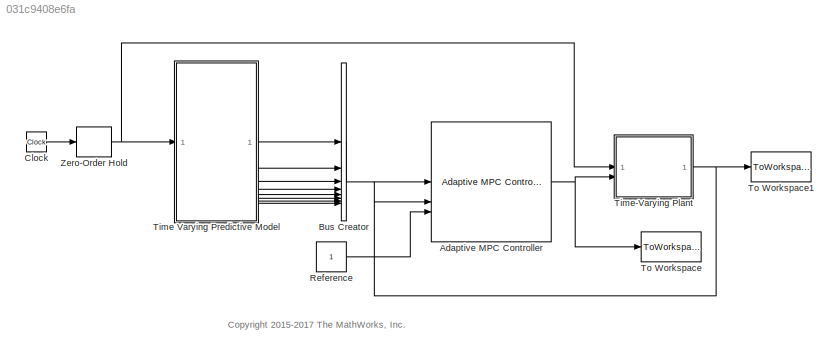
MODEL slx_031c9408e6fa
KIND model
CONFIG AbsTol = auto
CONFIG EnableMultiTasking = on
CONFIG FixedStep = Ts
CONFIG MaxStep = auto
CONFIG MinStep = auto
CONFIG RelTol = 1e-3
CONFIG SampleTimeConstraint = Unconstrained
CONFIG SolverName = FixedStepDiscrete
CONFIG StartTime = 0.0
CONFIG StopTime = 5
BLOCK [Reference] Adaptive MPC Controller  REF=mpclib/Adaptive MPC Controller  (lib defined in mdl_ae329e0e0455)
  SCDEnableBlockLinearizationSpecification = on
  SourceBlock = mpclib/Adaptive MPC Controller
  SourceType = Adaptive MPC
BLOCK [BusCreator] Bus Creator
  DisplayOption = bar
  InheritFromInputs = on
  Inputs = 8
BLOCK [Clock] Clock
BLOCK [Constant] Reference
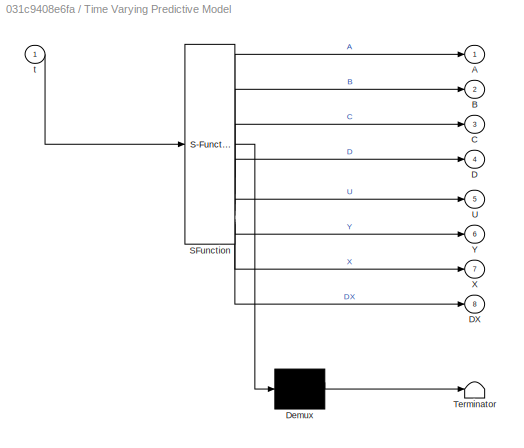
BLOCK [SubSystem] Time Varying Predictive Model
  ErrorFcn = Stateflow.Translate.translate
  PermitHierarchicalResolution = ExplicitOnly
  SFBlockType = MATLAB Function
  TreatAsAtomicUnit = on
BLOCK [Demux] Time Varying Predictive Model/ Demux 
  Outputs = 1
BLOCK [S-Function] Time Varying Predictive Model/ SFunction 
  EnableBusSupport = off
  FunctionName = sf_sfun
  Parameters = Ts
  PortCounts = [1 9]
  SFcnIsStateOwnerBlock = off
  SFunctionDeploymentMode = off
  Tag = Stateflow S-Function 1
BLOCK [Terminator] Time Varying Predictive Model/ Terminator 
BLOCK [Outport] Time Varying Predictive Model/A
BLOCK [Outport] Time Varying Predictive Model/B
  Port = 2
BLOCK [Outport] Time Varying Predictive Model/C
  Port = 3
BLOCK [Outport] Time Varying Predictive Model/D
  Port = 4
BLOCK [Outport] Time Varying Predictive Model/DX
  Port = 8
BLOCK [Outport] Time Varying Predictive Model/U
  Port = 5
BLOCK [Outport] Time Varying Predictive Model/X
  Port = 7
BLOCK [Outport] Time Varying Predictive Model/Y
  Port = 6
BLOCK [Inport] Time Varying Predictive Model/t
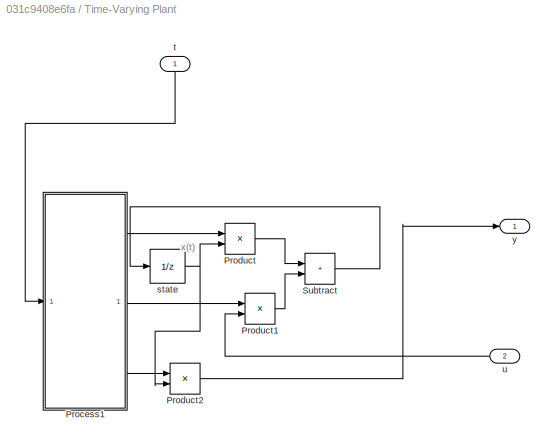
BLOCK [SubSystem] Time-Varying Plant
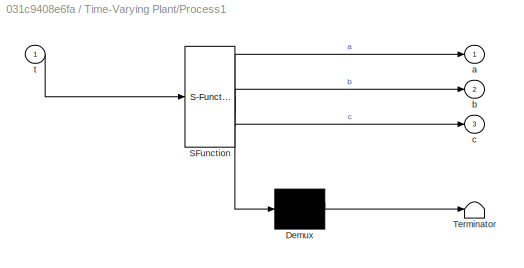
BLOCK [SubSystem] Time-Varying Plant/Process1
  ErrorFcn = Stateflow.Translate.translate
  PermitHierarchicalResolution = ExplicitOnly
  SFBlockType = MATLAB Function
  SystemSampleTime = Ts
  TreatAsAtomicUnit = on
BLOCK [Demux] Time-Varying Plant/Process1/ Demux 
  Outputs = 1
BLOCK [S-Function] Time-Varying Plant/Process1/ SFunction 
  EnableBusSupport = off
  FunctionName = sf_sfun
  Parameters = Ts
  PortCounts = [1 4]
  SFcnIsStateOwnerBlock = off
  SFunctionDeploymentMode = off
  Tag = Stateflow S-Function 2
BLOCK [Terminator] Time-Varying Plant/Process1/ Terminator 
BLOCK [Outport] Time-Varying Plant/Process1/a
BLOCK [Outport] Time-Varying Plant/Process1/b
  Port = 2
BLOCK [Outport] Time-Varying Plant/Process1/c
  Port = 3
BLOCK [Inport] Time-Varying Plant/Process1/t
BLOCK [Product] Time-Varying Plant/Product
  Multiplication = Matrix(*)
BLOCK [Product] Time-Varying Plant/Product1
  Multiplication = Matrix(*)
BLOCK [Product] Time-Varying Plant/Product2
  Multiplication = Matrix(*)
BLOCK [Sum] Time-Varying Plant/Subtract
  IconShape = rectangular
BLOCK [UnitDelay] Time-Varying Plant/state
  HasFrameUpgradeWarning = on
  InitialCondition = x0
  SampleTime = Ts
BLOCK [Inport] Time-Varying Plant/t
  NameLocation = right
BLOCK [Inport] Time-Varying Plant/u
  Port = 2
BLOCK [Outport] Time-Varying Plant/y
BLOCK [ToWorkspace] To Workspace
  FixptAsFi = on
  MaxDataPoints = inf
  SampleTime = -1
  VariableName = usim
BLOCK [ToWorkspace] To Workspace1
  FixptAsFi = on
  MaxDataPoints = inf
  SampleTime = -1
  VariableName = ysim
BLOCK [ZeroOrderHold] Zero-Order Hold
  SampleTime = Ts
ANNOTATION (root): <copyright redacted>
ANNOTATION Time-Varying Plant: x(t)
NET Adaptive MPC Controller:1 -> Time-Varying Plant:2, To Workspace:1
LINE Bus Creator:1 -> Adaptive MPC Controller:1
LINE Clock:1 -> Zero-Order Hold:1
LINE Reference:1 -> Adaptive MPC Controller:3
LINE Time Varying Predictive Model:1 -> Bus Creator:1
LINE Time Varying Predictive Model:2 -> Bus Creator:2
LINE Time Varying Predictive Model:3 -> Bus Creator:3
LINE Time Varying Predictive Model:4 -> Bus Creator:4
LINE Time Varying Predictive Model:5 -> Bus Creator:5
LINE Time Varying Predictive Model:6 -> Bus Creator:6
LINE Time Varying Predictive Model:7 -> Bus Creator:7
LINE Time Varying Predictive Model:8 -> Bus Creator:8
LINE Time-Varying Plant/Process1:1 -> Time-Varying Plant/Product:1
LINE Time-Varying Plant/Process1:2 -> Time-Varying Plant/Product1:1
LINE Time-Varying Plant/Process1:3 -> Time-Varying Plant/Product2:1
LINE Time-Varying Plant/Product1:1 -> Time-Varying Plant/Subtract:2
LINE Time-Varying Plant/Product2:1 -> Time-Varying Plant/y:1
LINE Time-Varying Plant/Product:1 -> Time-Varying Plant/Subtract:1
LINE Time-Varying Plant/Subtract:1 -> Time-Varying Plant/state:1
NET Time-Varying Plant/state:1 -> Time-Varying Plant/Product2:2, Time-Varying Plant/Product:2
LINE Time-Varying Plant/t:1 -> Time-Varying Plant/Process1:1
LINE Time-Varying Plant/u:1 -> Time-Varying Plant/Product1:2
NET Time-Varying Plant:1 -> Adaptive MPC Controller:2, To Workspace1:1
NET Zero-Order Hold:1 -> Time Varying Predictive Model:1, Time-Varying Plant:1
note: NET lines group one-source signal fan-out (src -> all destinations, sorted); 1:1 wires keep LINE
CHART Time Varying Predictive Model states=1 transitions=1
  STATE_LABEL 'eML_blk_kernel()'
  STATE_LABEL "SCRIPT:\nfunction [A,B,C,D,U,Y,X,DX] = fcn(t,Ts)\n%#codegen\n\ncoder.extrinsic('ss');\ncoder.extrinsic('c2d');\ncoder.extrinsic('tf');\ncoder.extrinsic('ssdata');\n\nnx=3; % number of states\np=3;\n\nA=zeros(nx,nx,p+1);\nB=zeros(nx,1,p+1);\nC=zeros(1,nx,p+1);\nD=zeros(1,1,p+1);\nU=zeros(1,1,p+1);\nY=zeros(1,1,p+1);\nX=zeros(nx,1,p+1);\nDX=zeros(nx,1,p+1);\n\nfor k=0:p,\n    [a,b,c,d]=ssdata(ss(c2d(tf([5 5+2*cos((t/Ts+k...<+219ch>"
CHART Time-Varying Plant/Process1 states=1 transitions=1
  STATE_LABEL 'eML_blk_kernel()'
  STATE_LABEL "SCRIPT:\nfunction [a,b,c] = fcn(t,Ts)\n%#codegen\n\ncoder.extrinsic('ss');\ncoder.extrinsic('c2d');\ncoder.extrinsic('tf');\ncoder.extrinsic('ssdata');\n\nnx=3;\na=zeros(nx,nx);\nb=zeros(nx,1);\nc=zeros(1,nx);\n\n[a,b,c]=ssdata(ss(c2d(tf([5 5+2*cos(t/Ts/4)],[1 3 2 6+1*sin(t/Ts/2)]),Ts)));\n\n"
CHART  states=0 transitions=0
CHART  states=0 transitions=0
